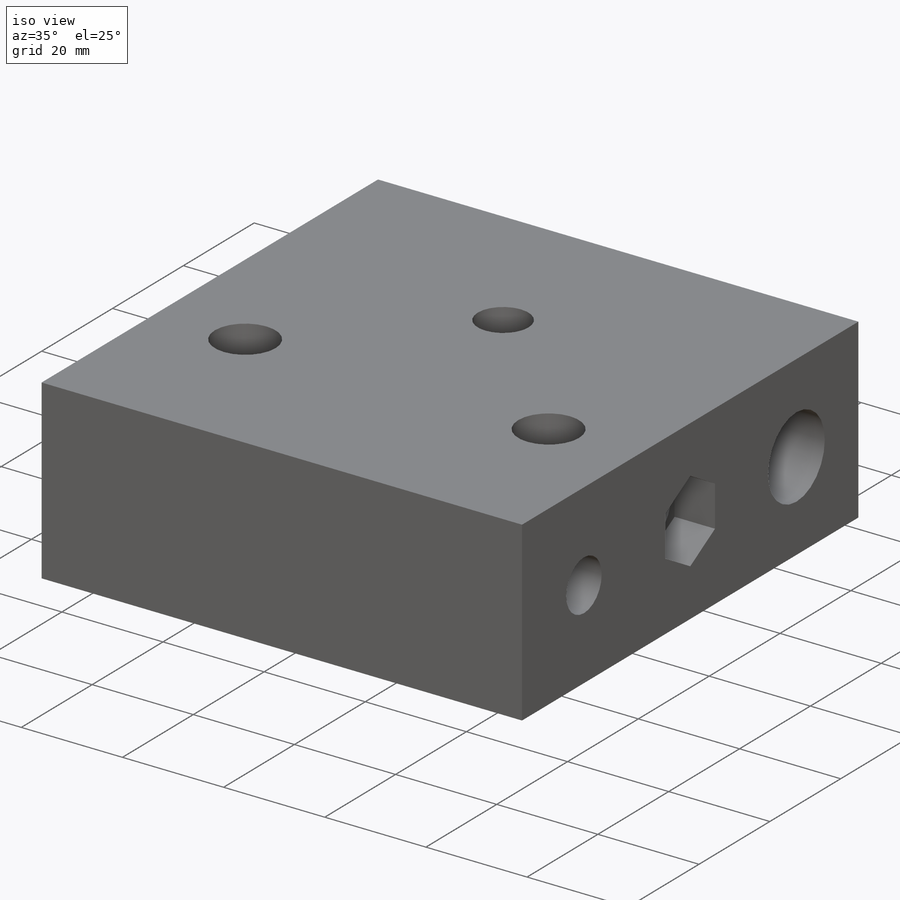
[diagram: iso view]
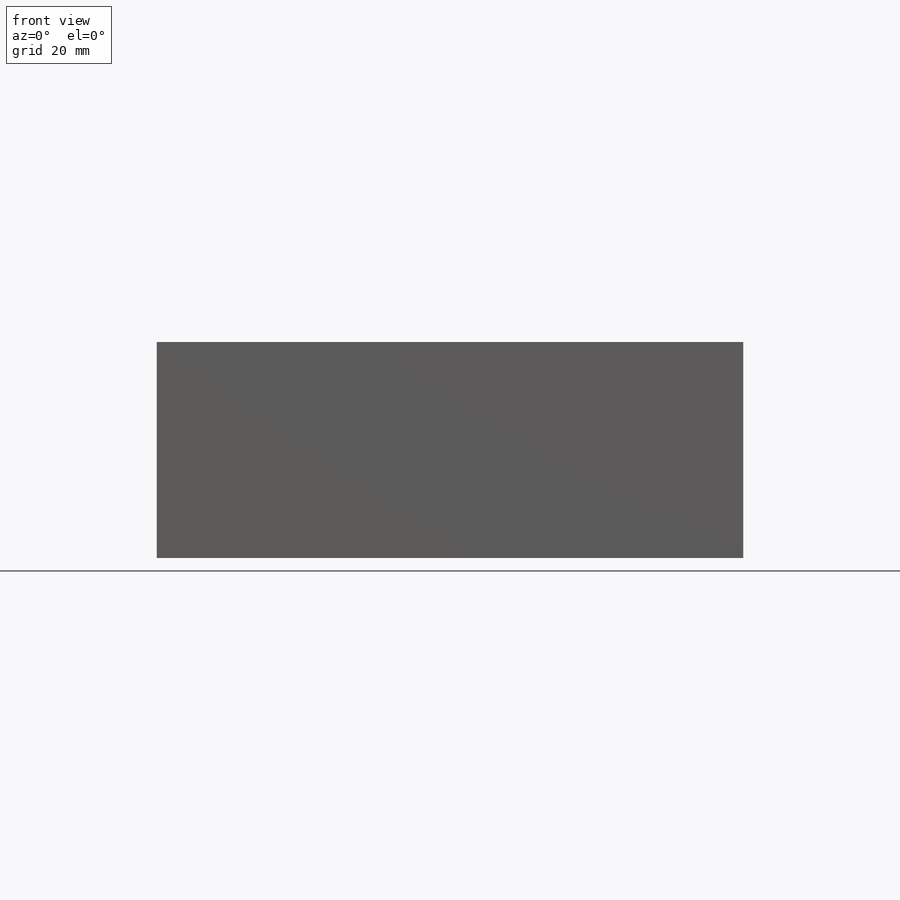
[diagram: front view]
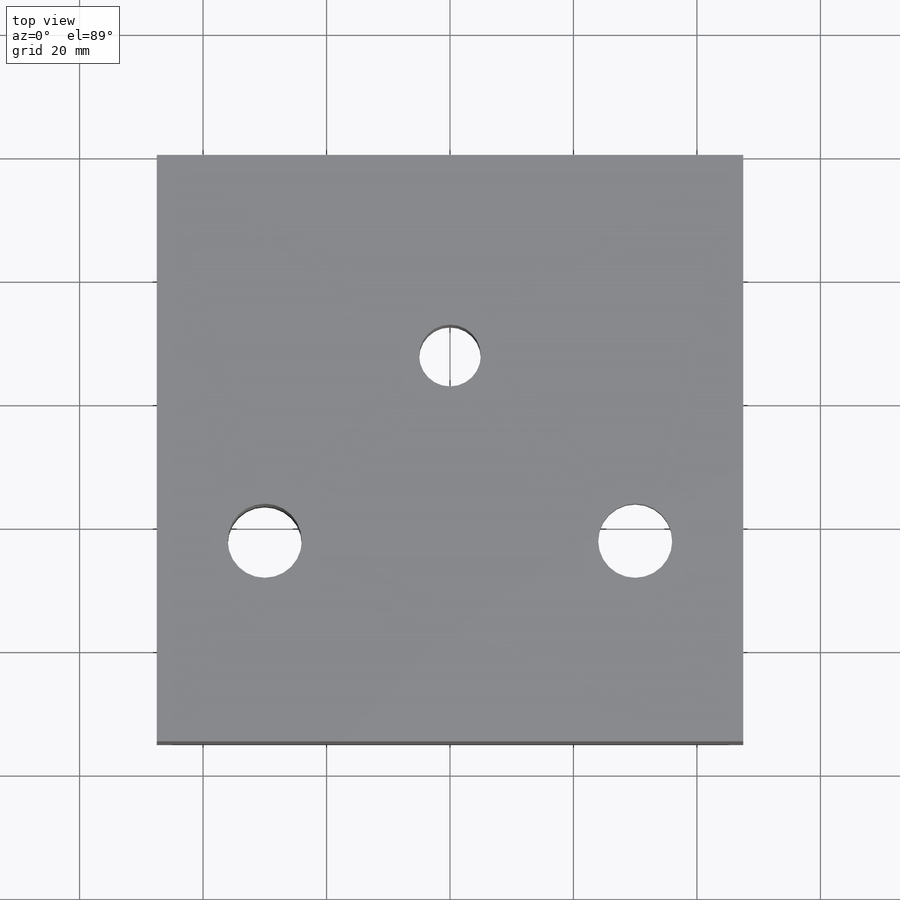
[diagram: top view]
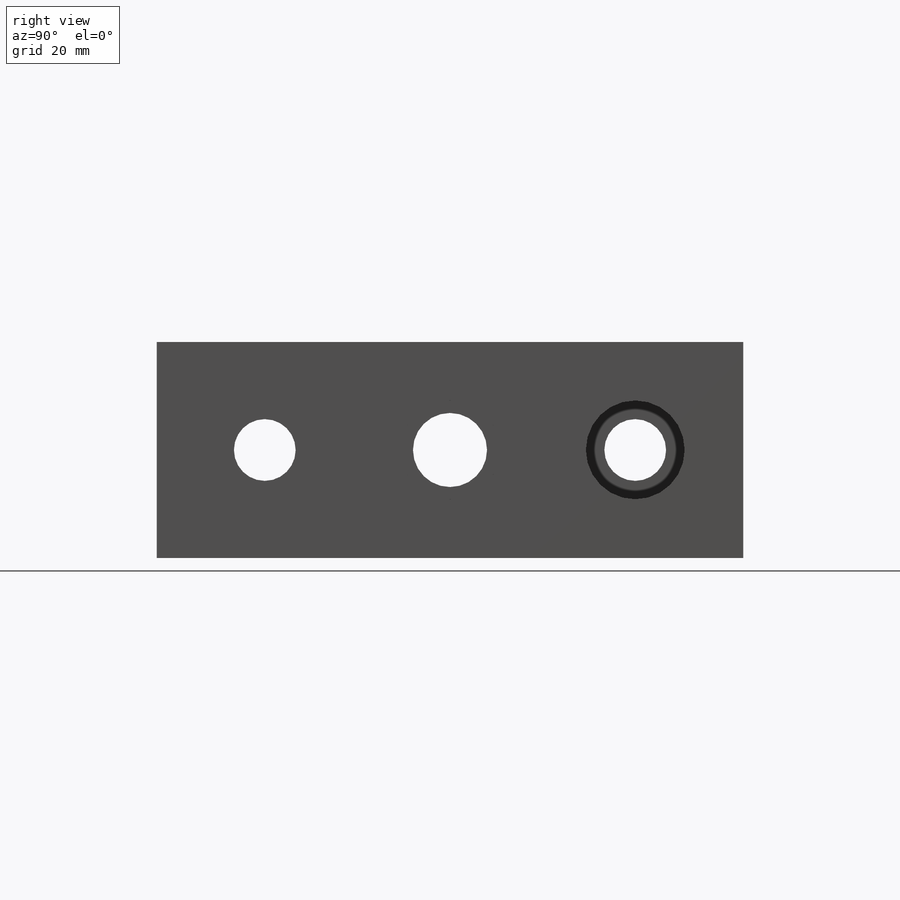
[diagram: right view]
SOLIDWORKS PART (.sldprt)
format: sldprt  version: not decoded by parser v0  size: 300,032 bytes
history: native  units: mm
features: sketch x10, cut_extrude x9, material x1, extrude x1 (+13 scaffold rows collapsed)
feature tree (34):
  scaffold x13  (default folders/planes/origin — collapsed)
  material  "Material <not specified>"
  sketch  "Sketch1"  dims[D1=35.0mm D2=95.0mm]
  extrude  "Boss-Extrude1"  Depth=95mm
  sketch  "Sketch2"  dims[D1=12.0mm D2=10.0mm D3=10.0mm D4=47.5mm D5=17.5mm D6=17.5mm D7=17.5mm D8=17.5mm D9=17.5mm]
  cut_extrude  "Cut-Extrude1"  Depth=95mm
  sketch  "Sketch3"  dims[D1=16.0mm D2=16.0mm]
  cut_extrude  "Cut-Extrude2"  Depth=26mm
  sketch  "Sketch4"  dims[D1=16.0mm]
  cut_extrude  "Cut-Extrude3"  Depth=60mm
  sketch  "Sketch5"  dims[D1=16.0mm]
  cut_extrude  "Cut-Extrude4"  Depth=26mm
  sketch  "Sketch6"  dims[D1=10.0mm D2=12.0mm D3=12.0mm D4=32.5mm D5=32.5mm D6=32.5mm D7=17.5mm D8=17.5mm D9=47.5mm D10=60.0mm]
  cut_extrude  "Cut-Extrude5"  Depth=35mm
  sketch  "Sketch8"  dims[D1=16.0mm D2=16.0mm]
  cut_extrude  "Cut-Extrude7"  Depth=26mm
  sketch  "Sketch12"  dims[14=14.0mm]
  cut_extrude  "Cut-Extrude10"  Depth=8mm
  sketch  "Sketch16"  dims[D1=14.0mm]
  cut_extrude  "Cut-Extrude14"  Depth=8mm
  sketch  "Sketch17"  dims[D1=14.0mm]
  cut_extrude  "Cut-Extrude15"  Depth=8mm
decode coverage: 20 of 20 modeling features carry decoded parameters
note: suppression state not decoded; provenance and decode notes live in map.json
